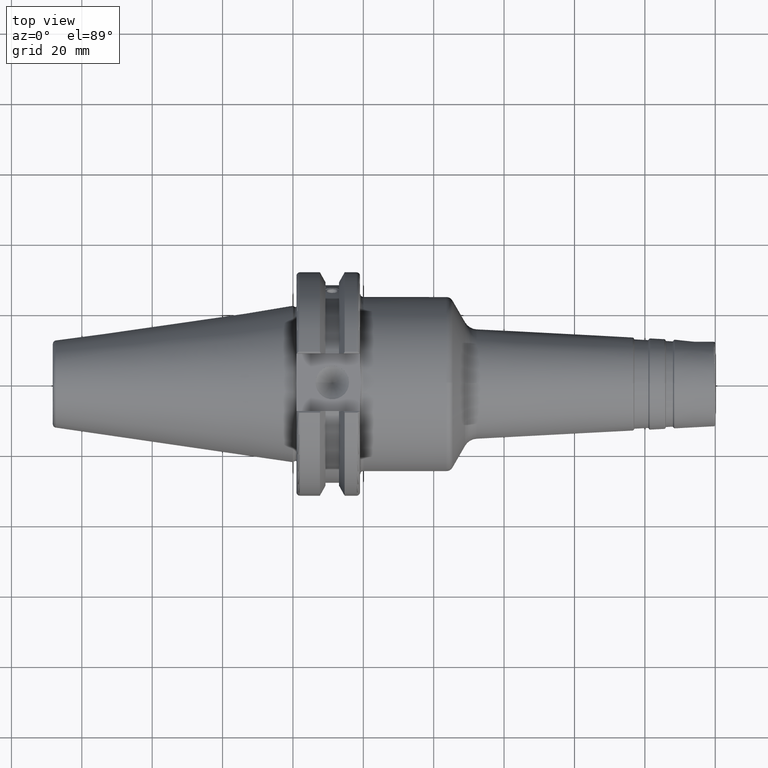
[diagram: clean part render]
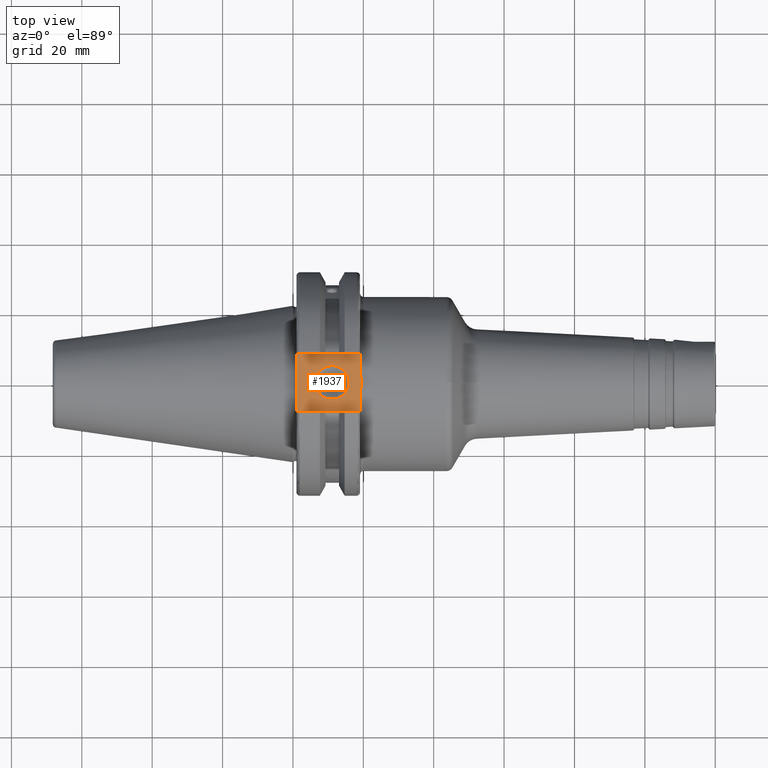
[diagram: same view with one face highlighted and labeled with its STEP entity id]
A machine part, top view. The second image highlights one B-rep face of the part: STEP entity #1937.
In plain terms, the highlighted planar face has unit normal (0, 0, 1).
Its self-contained STEP definition (entity closure, byte-faithful):
#82=B_SPLINE_CURVE_WITH_KNOTS('',3,(#2953,#2954,#2955,#2956,#2957,#2958,
#2959,#2960,#2961,#2962),.UNSPECIFIED.,.F.,.F.,(4,2,2,2,4),(1.28229186042809,
1.47392183654147,1.862003561099,2.25008528565653,2.44171526176991),
 .UNSPECIFIED.);
#130=FACE_BOUND('',#597,.T.);
#163=PLANE('',#2203);
#177=LINE('',#2994,#272);
#193=LINE('',#3163,#288);
#228=LINE('',#3567,#323);
#230=LINE('',#3610,#325);
#241=LINE('',#3672,#336);
#272=VECTOR('',#2384,10.);
#288=VECTOR('',#2472,10.);
#323=VECTOR('',#2657,10.);
#325=VECTOR('',#2667,10.);
#336=VECTOR('',#2688,10.);
#476=FACE_OUTER_BOUND('',#596,.T.);
#596=EDGE_LOOP('',(#1763,#1764,#1765,#1766,#1767,#1768));
#597=EDGE_LOOP('',(#1769));
#726=CIRCLE('',#2194,4.7625);
#780=VERTEX_POINT('',#2951);
#781=VERTEX_POINT('',#2952);
#787=VERTEX_POINT('',#2993);
#814=VERTEX_POINT('',#3161);
#891=VERTEX_POINT('',#3565);
#897=VERTEX_POINT('',#3609);
#928=VERTEX_POINT('',#3768);
#993=EDGE_CURVE('',#780,#781,#82,.F.);
#1000=EDGE_CURVE('',#780,#787,#177,.T.);
#1042=EDGE_CURVE('',#814,#781,#193,.T.);
#1148=EDGE_CURVE('',#814,#891,#228,.T.);
#1156=EDGE_CURVE('',#897,#787,#230,.T.);
#1175=EDGE_CURVE('',#897,#891,#241,.T.);
#1209=EDGE_CURVE('',#928,#928,#726,.T.);
#1763=ORIENTED_EDGE('',*,*,#1042,.F.);
#1764=ORIENTED_EDGE('',*,*,#1148,.T.);
#1765=ORIENTED_EDGE('',*,*,#1175,.F.);
#1766=ORIENTED_EDGE('',*,*,#1156,.T.);
#1767=ORIENTED_EDGE('',*,*,#1000,.F.);
#1768=ORIENTED_EDGE('',*,*,#993,.T.);
#1769=ORIENTED_EDGE('',*,*,#1209,.T.);
#1937=ADVANCED_FACE('',(#476,#130),#163,.T.);
#2194=AXIS2_PLACEMENT_3D('',#3769,#2760,#2761);
#2203=AXIS2_PLACEMENT_3D('',#3788,#2780,#2781);
#2384=DIRECTION('',(0.,-1.,0.));
#2472=DIRECTION('',(0.,-1.,0.));
#2657=DIRECTION('',(-1.,0.,0.));
#2667=DIRECTION('',(1.,-1.16558847729675E-16,0.));
#2688=DIRECTION('',(0.,1.,0.));
#2760=DIRECTION('center_axis',(0.,0.,-1.));
#2761=DIRECTION('ref_axis',(1.,0.,0.));
#2780=DIRECTION('center_axis',(0.,0.,1.));
#2781=DIRECTION('ref_axis',(1.,0.,0.));
#2951=CARTESIAN_POINT('',(19.05,-6.16948133962652,25.));
#2952=CARTESIAN_POINT('',(19.05,6.16948133962652,25.));
#2953=CARTESIAN_POINT('Ctrl Pts',(19.05,6.16948133962652,25.));
#2954=CARTESIAN_POINT('Ctrl Pts',(19.05,5.53071475258193,25.));
#2955=CARTESIAN_POINT('Ctrl Pts',(19.0917093675371,4.76533047486055,25.));
#2956=CARTESIAN_POINT('Ctrl Pts',(19.2334466867335,2.83816328553263,25.));
#2957=CARTESIAN_POINT('Ctrl Pts',(19.3885621722339,1.29360574852511,25.));
#2958=CARTESIAN_POINT('Ctrl Pts',(19.3885621722339,-1.29360574852511,25.));
#2959=CARTESIAN_POINT('Ctrl Pts',(19.2334466867335,-2.83816328553263,25.));
#2960=CARTESIAN_POINT('Ctrl Pts',(19.0917093675371,-4.76533047486055,25.));
#2961=CARTESIAN_POINT('Ctrl Pts',(19.05,-5.53071475258193,25.));
#2962=CARTESIAN_POINT('Ctrl Pts',(19.05,-6.16948133962652,25.));
#2993=CARTESIAN_POINT('',(19.05,-8.19,25.));
#2994=CARTESIAN_POINT('',(19.05,0.,25.));
#3161=CARTESIAN_POINT('',(19.05,8.19,25.));
#3163=CARTESIAN_POINT('',(19.05,0.,25.));
#3565=CARTESIAN_POINT('',(1.,8.19,25.));
#3567=CARTESIAN_POINT('',(20.05,8.19,25.));
#3609=CARTESIAN_POINT('',(1.,-8.19,25.));
#3610=CARTESIAN_POINT('',(1.,-8.19,25.));
#3672=CARTESIAN_POINT('',(1.,15.875,25.));
#3768=CARTESIAN_POINT('',(6.4135,-5.83238038093927E-16,25.));
#3769=CARTESIAN_POINT('Origin',(11.176,0.,25.));
#3788=CARTESIAN_POINT('Origin',(14.62,0.,25.));